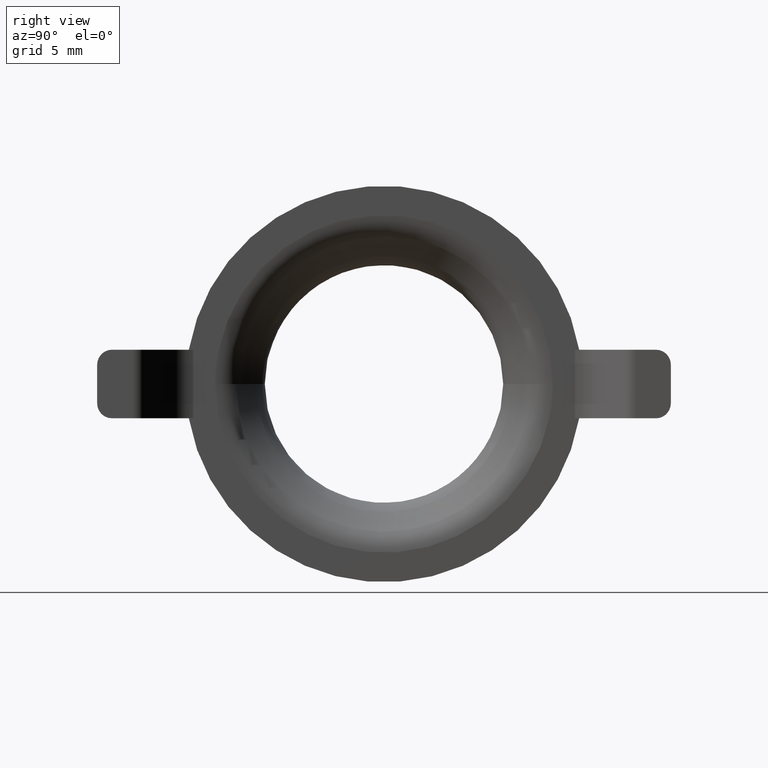
[diagram: clean part render]
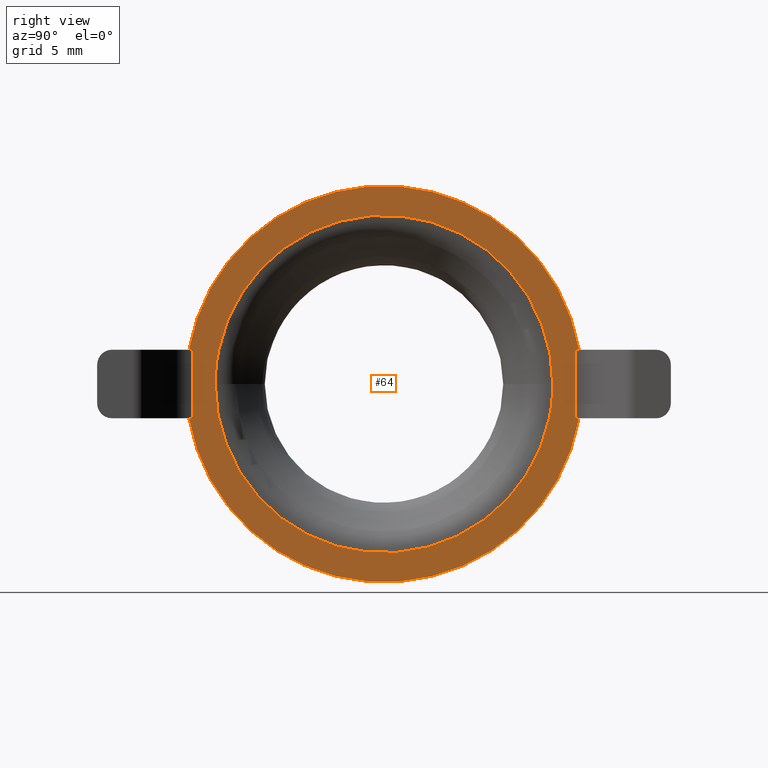
[diagram: same view with one face highlighted and labeled with its STEP entity id]
A machine part, right view. The second image highlights one B-rep face of the part: STEP entity #64.
In plain terms, the highlighted planar face has unit normal (1, 0, 0).
Its self-contained STEP definition (entity closure, byte-faithful):
#33=FACE_BOUND('',#174,.F.);
#34=PLANE('',#1111);
#64=ADVANCED_FACE('',(#33,#119),#34,.T.);
#119=FACE_OUTER_BOUND('',#175,.F.);
#174=EDGE_LOOP('',(#241,#242,#243,#244));
#175=EDGE_LOOP('',(#245,#246,#247,#248,#249,#250,#251,#252));
#241=ORIENTED_EDGE('',*,*,#753,.T.);
#242=ORIENTED_EDGE('',*,*,#756,.T.);
#243=ORIENTED_EDGE('',*,*,#755,.T.);
#244=ORIENTED_EDGE('',*,*,#754,.T.);
#245=ORIENTED_EDGE('',*,*,#758,.F.);
#246=ORIENTED_EDGE('',*,*,#726,.F.);
#247=ORIENTED_EDGE('',*,*,#727,.F.);
#248=ORIENTED_EDGE('',*,*,#728,.F.);
#249=ORIENTED_EDGE('',*,*,#757,.F.);
#250=ORIENTED_EDGE('',*,*,#731,.F.);
#251=ORIENTED_EDGE('',*,*,#732,.F.);
#252=ORIENTED_EDGE('',*,*,#733,.F.);
#546=LINE('',#1636,#626);
#547=LINE('',#1637,#627);
#548=LINE('',#1638,#628);
#551=LINE('',#1641,#631);
#552=LINE('',#1642,#632);
#553=LINE('',#1643,#633);
#626=VECTOR('',#1194,0.288295596242016);
#627=VECTOR('',#1195,4.60000000000004);
#628=VECTOR('',#1196,0.288295596242023);
#631=VECTOR('',#1199,0.288295596241767);
#632=VECTOR('',#1200,4.59999999999999);
#633=VECTOR('',#1201,0.288295596241767);
#726=EDGE_CURVE('',#984,#985,#546,.T.);
#727=EDGE_CURVE('',#983,#984,#547,.T.);
#728=EDGE_CURVE('',#982,#983,#548,.T.);
#731=EDGE_CURVE('',#978,#977,#551,.T.);
#732=EDGE_CURVE('',#976,#978,#552,.T.);
#733=EDGE_CURVE('',#979,#976,#553,.T.);
#753=EDGE_CURVE('',#960,#959,#877,.T.);
#754=EDGE_CURVE('',#958,#960,#878,.T.);
#755=EDGE_CURVE('',#957,#958,#879,.T.);
#756=EDGE_CURVE('',#959,#957,#880,.T.);
#757=EDGE_CURVE('',#977,#982,#881,.T.);
#758=EDGE_CURVE('',#985,#979,#882,.T.);
#877=CIRCLE('',#1064,11.3284271247462);
#878=CIRCLE('',#1065,11.3284271247462);
#879=CIRCLE('',#1066,11.3284271247462);
#880=CIRCLE('',#1067,11.3284271247462);
#881=CIRCLE('',#1068,13.3);
#882=CIRCLE('',#1069,13.3);
#957=VERTEX_POINT('',#1529);
#958=VERTEX_POINT('',#1530);
#959=VERTEX_POINT('',#1531);
#960=VERTEX_POINT('',#1532);
#976=VERTEX_POINT('',#1548);
#977=VERTEX_POINT('',#1549);
#978=VERTEX_POINT('',#1550);
#979=VERTEX_POINT('',#1551);
#982=VERTEX_POINT('',#1554);
#983=VERTEX_POINT('',#1555);
#984=VERTEX_POINT('',#1556);
#985=VERTEX_POINT('',#1557);
#1064=AXIS2_PLACEMENT_3D('',#1663,#1229,#1230);
#1065=AXIS2_PLACEMENT_3D('',#1664,#1231,#1232);
#1066=AXIS2_PLACEMENT_3D('',#1665,#1233,#1234);
#1067=AXIS2_PLACEMENT_3D('',#1666,#1235,#1236);
#1068=AXIS2_PLACEMENT_3D('',#1667,#1237,#1238);
#1069=AXIS2_PLACEMENT_3D('',#1668,#1239,#1240);
#1111=AXIS2_PLACEMENT_3D('',#1770,#1383,#1384);
#1194=DIRECTION('',(0.,1.,0.));
#1195=DIRECTION('',(0.,0.,1.));
#1196=DIRECTION('',(0.,-1.,0.));
#1199=DIRECTION('',(0.,-1.,0.));
#1200=DIRECTION('',(0.,0.,-1.));
#1201=DIRECTION('',(0.,1.,0.));
#1229=DIRECTION('',(1.,0.,0.));
#1230=DIRECTION('',(0.,0.979172711112534,-0.203029066422841));
#1231=DIRECTION('',(1.,0.,0.));
#1232=DIRECTION('',(0.,-1.,0.));
#1233=DIRECTION('',(1.,0.,0.));
#1234=DIRECTION('',(0.,-0.979172711112534,0.203029066422841));
#1235=DIRECTION('',(1.,0.,0.));
#1236=DIRECTION('',(0.,1.,0.));
#1237=DIRECTION('',(1.,0.,0.));
#1238=DIRECTION('',(0.,-0.984933707898515,-0.17293233082707));
#1239=DIRECTION('',(1.,0.,0.));
#1240=DIRECTION('',(0.,0.984933707898515,0.172932330827066));
#1383=DIRECTION('',(1.,0.,0.));
#1384=DIRECTION('',(0.,0.,1.));
#1529=CARTESIAN_POINT('',(90.1649997146962,-61.0924831275715,130.800000038254));
#1530=CARTESIAN_POINT('',(90.1649997146961,-61.3284235519392,128.500000055078));
#1531=CARTESIAN_POINT('',(90.1649997146961,-38.6715693024468,128.500000055078));
#1532=CARTESIAN_POINT('',(90.1649997146961,-38.9075097268145,126.200000071901));
#1548=CARTESIAN_POINT('',(90.1649997146961,-62.8113191460013,130.800000055078));
#1549=CARTESIAN_POINT('',(90.1649997146962,-63.0996147422432,126.200000055078));
#1550=CARTESIAN_POINT('',(90.1649997146961,-62.8113191460013,126.200000055078));
#1551=CARTESIAN_POINT('',(90.1649997146962,-63.0996147422432,130.800000055078));
#1554=CARTESIAN_POINT('',(90.1649997146961,-36.9003781121427,126.200000055078));
#1555=CARTESIAN_POINT('',(90.1649997146961,-37.1886737083846,126.200000055078));
#1556=CARTESIAN_POINT('',(90.1649997146961,-37.1886737083846,130.800000055078));
#1557=CARTESIAN_POINT('',(90.1649997146961,-36.9003781121427,130.800000055078));
#1636=CARTESIAN_POINT('',(90.1649997146961,-37.1886737083847,130.800000055078));
#1637=CARTESIAN_POINT('',(90.1649997146961,-37.1886737083846,126.200000055078));
#1638=CARTESIAN_POINT('',(90.1649997146961,-36.9003781121427,126.200000055078));
#1641=CARTESIAN_POINT('',(90.1649997146962,-62.8113191460015,126.200000055078));
#1642=CARTESIAN_POINT('',(90.1649997146962,-62.8113191460013,130.800000055078));
#1643=CARTESIAN_POINT('',(90.1649997146962,-63.0996147422432,130.800000055078));
#1663=CARTESIAN_POINT('',(90.1649997146962,-49.999996427193,128.500000055078));
#1664=CARTESIAN_POINT('',(90.1649997146962,-49.999996427193,128.500000055078));
#1665=CARTESIAN_POINT('',(90.1649997146962,-49.999996427193,128.500000055078));
#1666=CARTESIAN_POINT('',(90.1649997146962,-49.999996427193,128.500000055078));
#1667=CARTESIAN_POINT('',(90.1649997146962,-49.999996427193,128.500000055078));
#1668=CARTESIAN_POINT('',(90.1649997146962,-49.999996427193,128.500000055078));
#1770=CARTESIAN_POINT('',(90.1649997146962,-36.433996427193,114.934000055078));